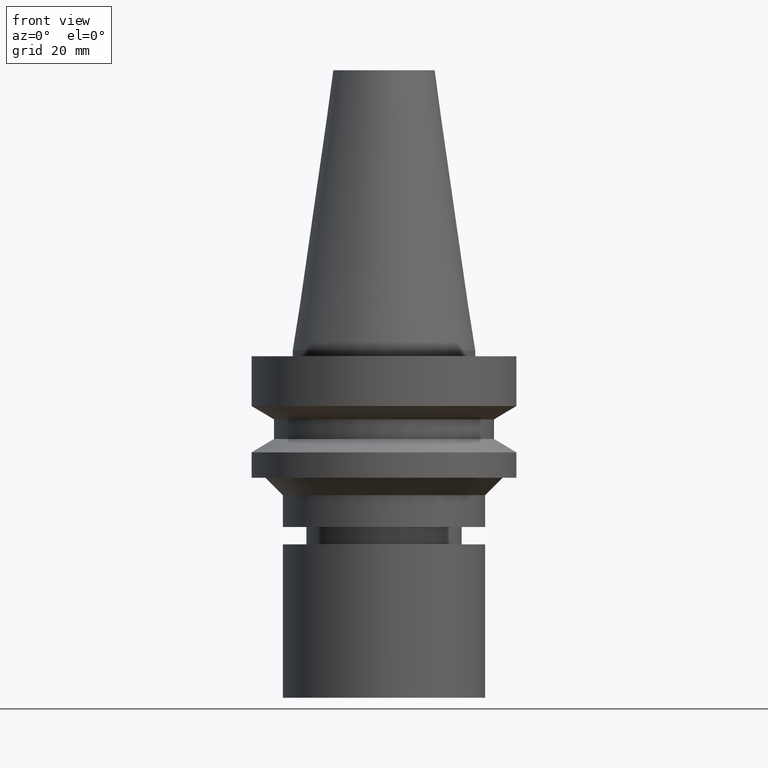
[diagram: clean part render]
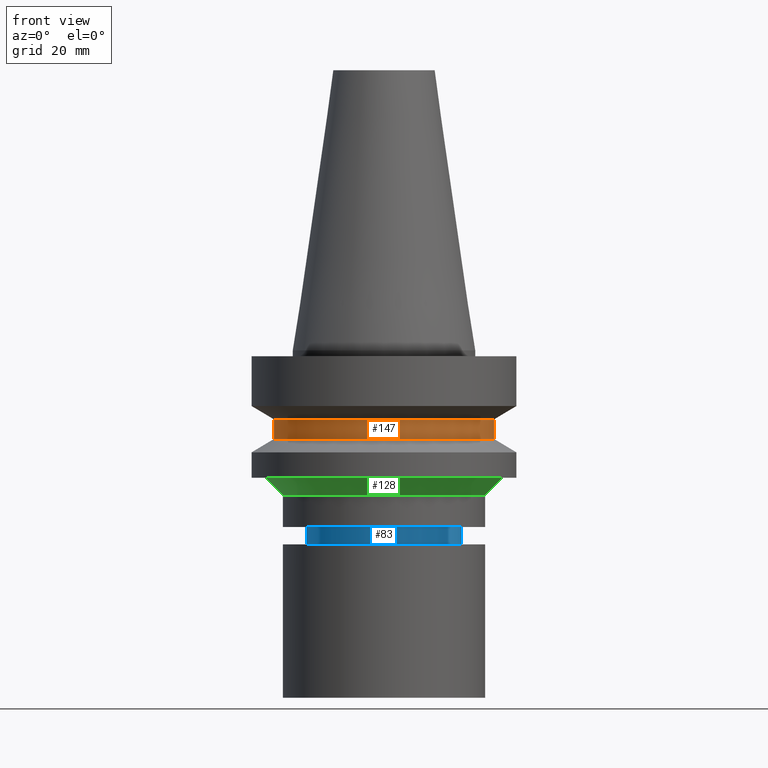
[diagram: same view with three faces highlighted in distinct colors, each labeled with its STEP entity id]
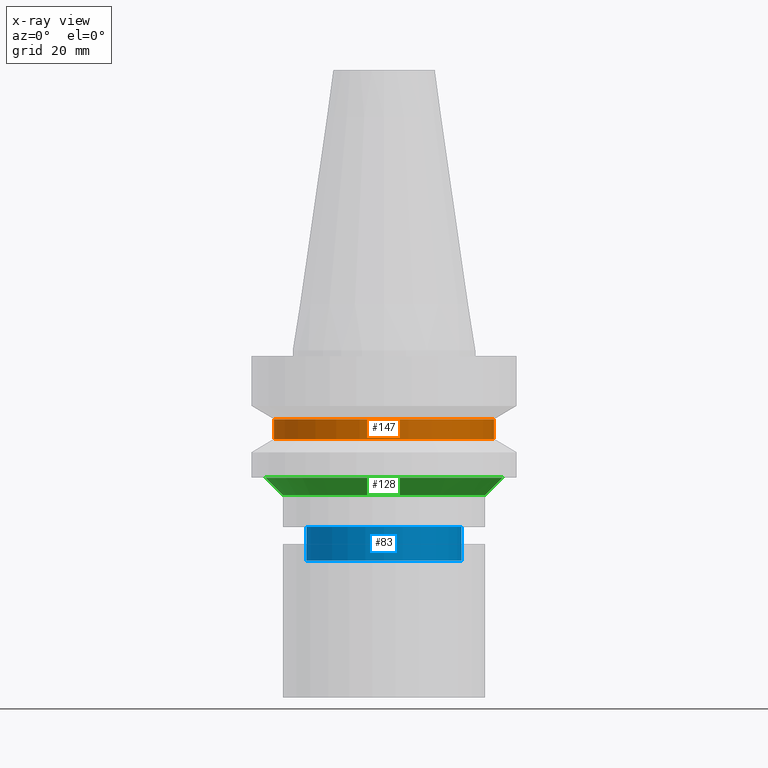
[diagram: x-ray of the same camera — body ghosted, the three highlighted faces saturated]
A machine part, front view with three faces highlighted in distinct colors.
The next image is the same camera in x-ray (body ghosted, the three faces saturated) — at least one of them is partly hidden behind the body in this view.
Their STEP definitions:

[orange] entity #147 — the highlighted cylindrical surface (bore or boss wall) has radius 19 mm, axis along (0, 0, -1).
#110=EDGE_CURVE('Unnamed[1]',#255,#255,#256,.T.);
#130=EDGE_CURVE('Unnamed[1]',#286,#286,#287,.T.);
#147=ADVANCED_FACE('Unnamed[1]',(#310,#311),#312,.T.);
#255=VERTEX_POINT('',#443);
#256=CIRCLE('',#444,19.0);
#286=VERTEX_POINT('',#483);
#287=CIRCLE('',#484,19.0);
#310=FACE_BOUND('',#512,.T.);
#311=FACE_BOUND('',#513,.T.);
#312=CYLINDRICAL_SURFACE('',#514,19.0);
#443=CARTESIAN_POINT('',(7.29240495619202E-016,19.0,-11.90940108));
#444=AXIS2_PLACEMENT_3D('',#640,#641,#642);
#483=CARTESIAN_POINT('',(9.36279151221199E-016,19.0,-15.29059892));
#484=AXIS2_PLACEMENT_3D('',#673,#674,#675);
#512=EDGE_LOOP('',(#698));
#513=EDGE_LOOP('',(#699));
#514=AXIS2_PLACEMENT_3D('',#700,#701,#702);
#640=CARTESIAN_POINT('',(7.29240495619202E-016,1.4584809912384E-015,-11.90940108));
#641=DIRECTION('',(6.12323399573677E-017,1.22464679914735E-016,-1.0));
#642=DIRECTION('',(-1.23259516440783E-032,1.0,1.22464679914735E-016));
#673=CARTESIAN_POINT('',(9.36279151221199E-016,1.8725583024424E-015,-15.29059892));
#674=DIRECTION('',(6.12323399573677E-017,1.22464679914735E-016,-1.0));
#675=DIRECTION('',(-1.23259516440783E-032,1.0,1.22464679914735E-016));
#698=ORIENTED_EDGE('',*,*,#130,.F.);
#699=ORIENTED_EDGE('',*,*,#110,.T.);
#700=CARTESIAN_POINT('',(8.32759823420201E-016,1.6655196468404E-015,-13.6));
#701=DIRECTION('',(6.12323399573677E-017,1.22464679914735E-016,-1.0));
#702=DIRECTION('',(-1.23259516440783E-032,1.0,1.22464679914735E-016));

[blue] entity #83 — the highlighted cylindrical surface (bore or boss wall) has radius 13.5 mm, axis along (0, 0, -1).
#83=ADVANCED_FACE('Unnamed[1]',(#213,#214),#215,.T.);
#154=EDGE_CURVE('Unnamed[1]',#322,#322,#323,.T.);
#156=EDGE_CURVE('Unnamed[1]',#325,#325,#326,.T.);
#213=FACE_BOUND('',#392,.T.);
#214=FACE_BOUND('',#393,.T.);
#215=CYLINDRICAL_SURFACE('',#394,13.4999999999956);
#322=VERTEX_POINT('',#527);
#323=CIRCLE('',#528,13.4999999999908);
#325=VERTEX_POINT('',#531);
#326=CIRCLE('',#532,13.5000000000005);
#392=EDGE_LOOP('',(#593));
#393=EDGE_LOOP('',(#594));
#394=AXIS2_PLACEMENT_3D('',#595,#596,#597);
#527=CARTESIAN_POINT('',(1.86758636869969E-015,13.4999999999908,-30.4999999999996));
#528=AXIS2_PLACEMENT_3D('',#712,#713,#714);
#531=CARTESIAN_POINT('',(2.22410094420044E-015,13.5000000000005,-36.3223248654052));
#532=AXIS2_PLACEMENT_3D('',#715,#716,#717);
#593=ORIENTED_EDGE('',*,*,#156,.F.);
#594=ORIENTED_EDGE('',*,*,#154,.T.);
#595=CARTESIAN_POINT('',(2.04584365645006E-015,4.09168731290013E-015,-33.4111624327024));
#596=DIRECTION('',(6.12323399573677E-017,1.22464679914735E-016,-1.0));
#597=DIRECTION('',(-1.23259516440783E-032,1.0,1.22464679914735E-016));
#712=CARTESIAN_POINT('',(1.86758636869969E-015,3.73517273739938E-015,-30.4999999999996));
#713=DIRECTION('',(6.12323399573677E-017,1.22464679914735E-016,-1.0));
#714=DIRECTION('',(-1.23259516440783E-032,1.0,1.22464679914735E-016));
#715=CARTESIAN_POINT('',(2.22410094420044E-015,4.44820188840088E-015,-36.3223248654052));
#716=DIRECTION('',(6.12323399573677E-017,1.22464679914735E-016,-1.0));
#717=DIRECTION('',(-1.23259516440783E-032,1.0,1.22464679914735E-016));

[green] entity #128 — the highlighted conical surface has half-angle 45 deg.
#118=EDGE_CURVE('Unnamed[1]',#267,#267,#268,.T.);
#120=EDGE_CURVE('Unnamed[1]',#270,#270,#271,.T.);
#128=ADVANCED_FACE('Unnamed[1]',(#282,#283),#284,.T.);
#267=VERTEX_POINT('',#459);
#268=CIRCLE('',#460,20.4999999999995);
#270=VERTEX_POINT('',#463);
#271=CIRCLE('',#464,17.4999999999995);
#282=FACE_BOUND('',#478,.T.);
#283=FACE_BOUND('',#479,.T.);
#284=CONICAL_SURFACE('',#480,18.9999999999995,0.785398163397406);
#459=CARTESIAN_POINT('',(1.34711147906209E-015,20.4999999999995,-22.0));
#460=AXIS2_PLACEMENT_3D('',#652,#653,#654);
#463=CARTESIAN_POINT('',(1.53080849893421E-015,17.4999999999995,-25.0000000000002));
#464=AXIS2_PLACEMENT_3D('',#655,#656,#657);
#478=EDGE_LOOP('',(#668));
#479=EDGE_LOOP('',(#669));
#480=AXIS2_PLACEMENT_3D('',#670,#671,#672);
#652=CARTESIAN_POINT('',(1.34711147906209E-015,2.69422295812418E-015,-22.0));
#653=DIRECTION('',(6.12323399573677E-017,1.22464679914735E-016,-1.0));
#654=DIRECTION('',(-1.23259516440783E-032,1.0,1.22464679914735E-016));
#655=CARTESIAN_POINT('',(1.53080849893421E-015,3.06161699786841E-015,-25.0000000000002));
#656=DIRECTION('',(6.12323399573677E-017,1.22464679914735E-016,-1.0));
#657=DIRECTION('',(-1.23259516440783E-032,1.0,1.22464679914735E-016));
#668=ORIENTED_EDGE('',*,*,#120,.F.);
#669=ORIENTED_EDGE('',*,*,#118,.T.);
#670=CARTESIAN_POINT('',(1.43895998899815E-015,2.87791997799629E-015,-23.5000000000001));
#671=DIRECTION('',(-6.12323399573677E-017,-1.22464679914735E-016,1.0));
#672=DIRECTION('',(-1.23259516440783E-032,1.0,1.22464679914735E-016));